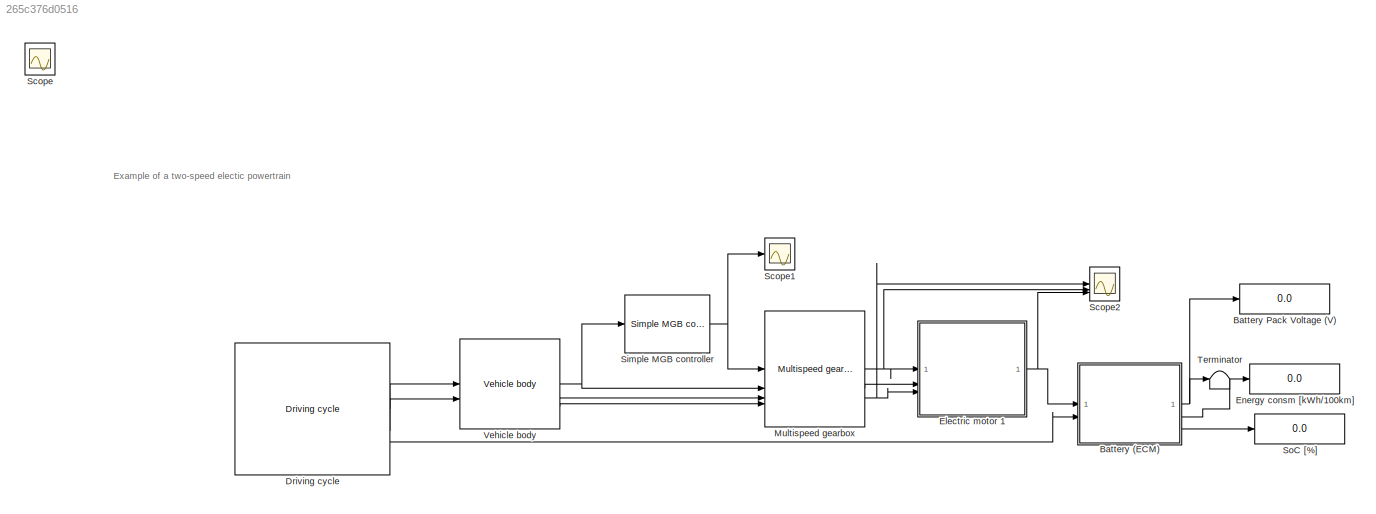
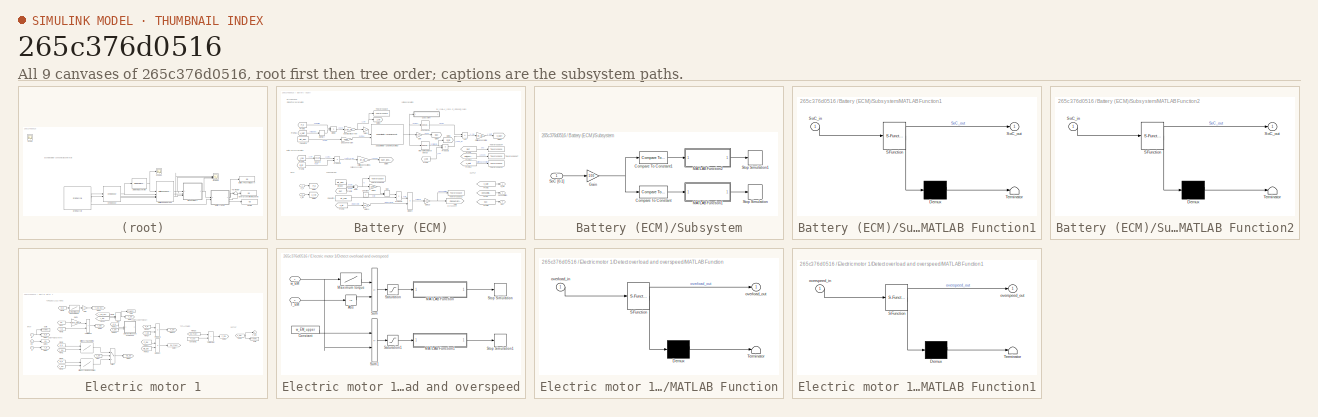
[diagram: thumbnail index - all 9 canvases of the model, root first then tree order]
MODEL slx_265c376d0516
KIND model
CONFIG AbsTol = auto
CONFIG EnableMultiTasking = off
CONFIG FixedStep = auto
CONFIG MaxStep = auto
CONFIG MinStep = auto
CONFIG RelTol = 1e-3
CONFIG SampleTimeConstraint = Unconstrained
CONFIG SolverName = VariableStepAuto
CONFIG StartTime = 0.0
CONFIG StopTime = 1800
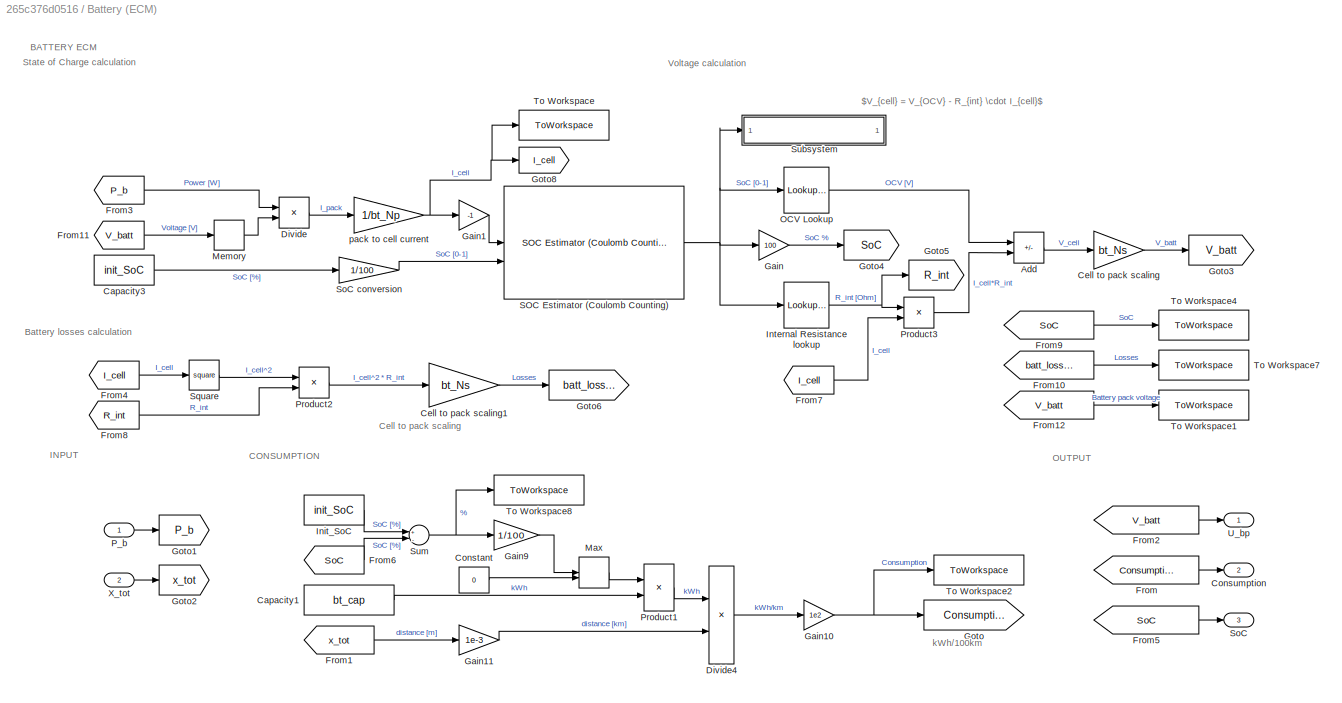
BLOCK [SubSystem] Battery (ECM)
  AncestorBlock = EnergyStorage/Battery (ECM)
  InitFcn = % Check if ECMdata already exists in the workspace existingVars = evalin('base', 'who'); if ismember('ECMdata', existingVars) % If ECMdata exists, load it into the mask parameters ECMdata = evalin('base', 'ECMdata'); % Check if values are set, if not set defaults if isempty(get_param(gcb, 'bt_vol')) set_param(gcb, 'bt_vol', num2str(ECMdata.bt_vol)); end if isempty(get_param(gcb, 'bt_cap')) set_par...<+263ch>
BLOCK [Sum] Battery (ECM)/Add
  IconShape = rectangular
  Inputs = +-
BLOCK [Constant] Battery (ECM)/Capacity1
  Value = bt_cap
BLOCK [Constant] Battery (ECM)/Capacity3
  Value = init_SoC
BLOCK [Gain] Battery (ECM)/Cell to pack scaling
  Gain = bt_Ns
BLOCK [Gain] Battery (ECM)/Cell to pack scaling1
  Gain = bt_Ns
BLOCK [Constant] Battery (ECM)/Constant
  Value = 0
BLOCK [Outport] Battery (ECM)/Consumption
  Port = 2
BLOCK [Product] Battery (ECM)/Divide
  Inputs = */
BLOCK [Product] Battery (ECM)/Divide4
  Inputs = */
BLOCK [From] Battery (ECM)/From
  GotoTag = Consumption
BLOCK [From] Battery (ECM)/From1
  GotoTag = x_tot
BLOCK [From] Battery (ECM)/From10
  GotoTag = batt_losses
BLOCK [From] Battery (ECM)/From11
  GotoTag = V_batt
BLOCK [From] Battery (ECM)/From12
  GotoTag = V_batt
BLOCK [From] Battery (ECM)/From2
  GotoTag = V_batt
BLOCK [From] Battery (ECM)/From3
  GotoTag = P_b
BLOCK [From] Battery (ECM)/From4
  GotoTag = I_cell
BLOCK [From] Battery (ECM)/From5
  GotoTag = SoC
BLOCK [From] Battery (ECM)/From6
  GotoTag = SoC
BLOCK [From] Battery (ECM)/From7
  GotoTag = I_cell
BLOCK [From] Battery (ECM)/From8
  GotoTag = R_int
BLOCK [From] Battery (ECM)/From9
  GotoTag = SoC
BLOCK [Gain] Battery (ECM)/Gain
  Gain = 100
BLOCK [Gain] Battery (ECM)/Gain1
  Gain = -1
BLOCK [Gain] Battery (ECM)/Gain10
  Gain = 1e2
BLOCK [Gain] Battery (ECM)/Gain11
  Gain = 1e-3
BLOCK [Gain] Battery (ECM)/Gain9
  Gain = 1/100
BLOCK [Goto] Battery (ECM)/Goto
  GotoTag = Consumption
BLOCK [Goto] Battery (ECM)/Goto1
  GotoTag = P_b
BLOCK [Goto] Battery (ECM)/Goto2
  GotoTag = x_tot
BLOCK [Goto] Battery (ECM)/Goto3
  GotoTag = V_batt
BLOCK [Goto] Battery (ECM)/Goto4
  GotoTag = SoC
BLOCK [Goto] Battery (ECM)/Goto5
  GotoTag = R_int
BLOCK [Goto] Battery (ECM)/Goto6
  GotoTag = batt_losses
BLOCK [Goto] Battery (ECM)/Goto8
  GotoTag = I_cell
BLOCK [Constant] Battery (ECM)/Init_SoC
  Value = init_SoC
BLOCK [Lookup_n-D] Battery (ECM)/Internal Resistance lookup
  BreakpointsForDimension1 = SoC_breakpoints
  InputPortMap = u0
  InternalRulePriority = Speed
  NumberOfTableDimensions = 1
  RndMeth = Simplest
  Table = Internal_Resistance
BLOCK [MinMax] Battery (ECM)/Max
  Function = max
  Inputs = 2
BLOCK [Memory] Battery (ECM)/Memory
  InheritSampleTime = on
  InitialCondition = bt_vol
  LinearizeAsDelay = on
BLOCK [Lookup_n-D] Battery (ECM)/OCV Lookup
  BreakpointsForDimension1 = SoC_breakpoints
  InputPortMap = u0
  InternalRulePriority = Speed
  NumberOfTableDimensions = 1
  RndMeth = Simplest
  Table = OCV
BLOCK [Inport] Battery (ECM)/P_b
BLOCK [Product] Battery (ECM)/Product1
BLOCK [Product] Battery (ECM)/Product2
BLOCK [Product] Battery (ECM)/Product3
BLOCK [Reference] Battery (ECM)/SOC Estimator (Coulomb Counting)  REF=BatteryEstimators/SOC Estimator
(Coulomb Counting)
  LibrarySourceBlock = batt_sl_lib/Estimators/SOC Estimator\n(Coulomb Counting)
  SourceBlock = BatteryEstimators/SOC Estimator\n(Coulomb Counting)
  SourceType = SOC Estimator (Coulomb Counting)
BLOCK [Outport] Battery (ECM)/SoC
  Port = 3
BLOCK [Gain] Battery (ECM)/SoC conversion
  Gain = 1/100
BLOCK [Math] Battery (ECM)/Square
  Operator = square
BLOCK [SubSystem] Battery (ECM)/Subsystem
  ShowPortLabels = none
BLOCK [Reference] Battery (ECM)/Subsystem/Compare To Constant  REF=simulink/Logic and Bit
Operations/Compare
To Constant
  SourceBlock = simulink/Logic and Bit\nOperations/Compare\nTo Constant
  SourceType = Compare To Constant
BLOCK [Reference] Battery (ECM)/Subsystem/Compare To Constant1  REF=simulink/Logic and Bit
Operations/Compare
To Constant
  SourceBlock = simulink/Logic and Bit\nOperations/Compare\nTo Constant
  SourceType = Compare To Constant
BLOCK [Gain] Battery (ECM)/Subsystem/Gain
  Gain = 100
BLOCK [SubSystem] Battery (ECM)/Subsystem/MATLAB Function1
  ErrorFcn = Stateflow.Translate.translate
  PermitHierarchicalResolution = ExplicitOnly
  SFBlockType = MATLAB Function
  TreatAsAtomicUnit = on
BLOCK [Demux] Battery (ECM)/Subsystem/MATLAB Function1/ Demux 
  Outputs = 1
BLOCK [S-Function] Battery (ECM)/Subsystem/MATLAB Function1/ SFunction 
  EnableBusSupport = on
  FunctionName = sf_sfun
  PortCounts = [1 2]
  SFcnIsStateOwnerBlock = off
  SFunctionDeploymentMode = off
  Tag = Stateflow S-Function 4
BLOCK [Terminator] Battery (ECM)/Subsystem/MATLAB Function1/ Terminator 
BLOCK [Inport] Battery (ECM)/Subsystem/MATLAB Function1/SoC_in
BLOCK [Outport] Battery (ECM)/Subsystem/MATLAB Function1/SoC_out
BLOCK [SubSystem] Battery (ECM)/Subsystem/MATLAB Function2
  ErrorFcn = Stateflow.Translate.translate
  PermitHierarchicalResolution = ExplicitOnly
  SFBlockType = MATLAB Function
  TreatAsAtomicUnit = on
BLOCK [Demux] Battery (ECM)/Subsystem/MATLAB Function2/ Demux 
  Outputs = 1
BLOCK [S-Function] Battery (ECM)/Subsystem/MATLAB Function2/ SFunction 
  EnableBusSupport = on
  FunctionName = sf_sfun
  PortCounts = [1 2]
  SFcnIsStateOwnerBlock = off
  SFunctionDeploymentMode = off
  Tag = Stateflow S-Function 5
BLOCK [Terminator] Battery (ECM)/Subsystem/MATLAB Function2/ Terminator 
BLOCK [Inport] Battery (ECM)/Subsystem/MATLAB Function2/SoC_in
BLOCK [Outport] Battery (ECM)/Subsystem/MATLAB Function2/SoC_out
BLOCK [Inport] Battery (ECM)/Subsystem/SoC [0-1]
BLOCK [Stop] Battery (ECM)/Subsystem/Stop Simulation
BLOCK [Stop] Battery (ECM)/Subsystem/Stop Simulation1
BLOCK [Sum] Battery (ECM)/Sum
  Inputs = +|-
BLOCK [ToWorkspace] Battery (ECM)/To Workspace
  FixptAsFi = on
  MaxDataPoints = inf
  SampleTime = -1
  VariableName = I_cell
BLOCK [ToWorkspace] Battery (ECM)/To Workspace1
  FixptAsFi = on
  MaxDataPoints = inf
  SampleTime = -1
  VariableName = U_bp
BLOCK [ToWorkspace] Battery (ECM)/To Workspace2
  FixptAsFi = on
  MaxDataPoints = inf
  SampleTime = -1
  VariableName = Consumption
BLOCK [ToWorkspace] Battery (ECM)/To Workspace4
  FixptAsFi = on
  MaxDataPoints = inf
  SampleTime = -1
  VariableName = SoC
BLOCK [ToWorkspace] Battery (ECM)/To Workspace7
  FixptAsFi = on
  MaxDataPoints = inf
  SampleTime = -1
  VariableName = Losses
BLOCK [ToWorkspace] Battery (ECM)/To Workspace8
  FixptAsFi = on
  MaxDataPoints = inf
  SampleTime = -1
  VariableName = delta_SoC
BLOCK [Outport] Battery (ECM)/U_bp
BLOCK [Inport] Battery (ECM)/X_tot
  Port = 2
BLOCK [Gain] Battery (ECM)/pack to cell current
  Gain = 1/bt_Np
BLOCK [Display] Battery Pack Voltage (V)
  Decimation = 1
BLOCK [Reference] Driving cycle  REF=DrivingCycle/Driving cycle
  SourceBlock = DrivingCycle/Driving cycle
  SourceProductName = Driving cycle
  SourceType = Driving cycle
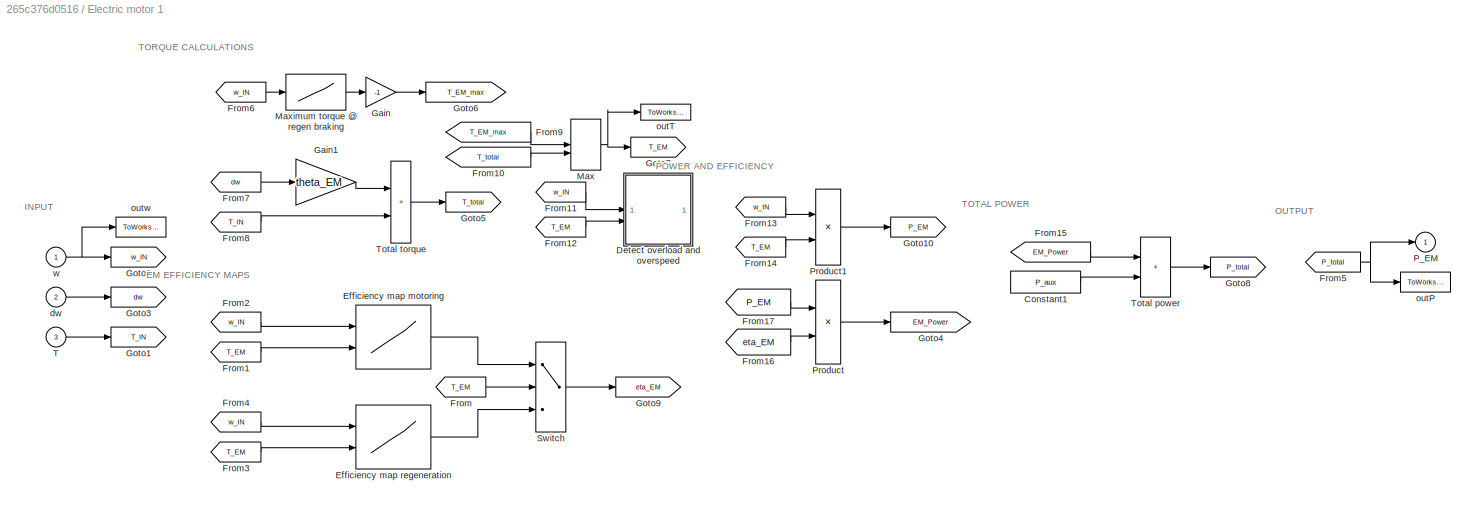
BLOCK [SubSystem] Electric motor 1
BLOCK [Constant] Electric motor 1/Constant1
  Value = P_aux
BLOCK [SubSystem] Electric motor 1/Detect overload and overspeed
BLOCK [Abs] Electric motor 1/Detect overload and overspeed/Abs
BLOCK [Constant] Electric motor 1/Detect overload and overspeed/Constant
  Value = w_EM_upper
BLOCK [SubSystem] Electric motor 1/Detect overload and overspeed/MATLAB Function
  ErrorFcn = Stateflow.Translate.translate
  PermitHierarchicalResolution = ExplicitOnly
  SFBlockType = MATLAB Function
  TreatAsAtomicUnit = on
BLOCK [Demux] Electric motor 1/Detect overload and overspeed/MATLAB Function/ Demux 
  Outputs = 1
BLOCK [S-Function] Electric motor 1/Detect overload and overspeed/MATLAB Function/ SFunction 
  EnableBusSupport = on
  FunctionName = sf_sfun
  PortCounts = [1 2]
  SFcnIsStateOwnerBlock = off
  SFunctionDeploymentMode = off
  Tag = Stateflow S-Function 1
BLOCK [Terminator] Electric motor 1/Detect overload and overspeed/MATLAB Function/ Terminator 
BLOCK [Inport] Electric motor 1/Detect overload and overspeed/MATLAB Function/overload_in
BLOCK [Outport] Electric motor 1/Detect overload and overspeed/MATLAB Function/overload_out
BLOCK [SubSystem] Electric motor 1/Detect overload and overspeed/MATLAB Function1
  ErrorFcn = Stateflow.Translate.translate
  PermitHierarchicalResolution = ExplicitOnly
  SFBlockType = MATLAB Function
  TreatAsAtomicUnit = on
BLOCK [Demux] Electric motor 1/Detect overload and overspeed/MATLAB Function1/ Demux 
  Outputs = 1
BLOCK [S-Function] Electric motor 1/Detect overload and overspeed/MATLAB Function1/ SFunction 
  EnableBusSupport = on
  FunctionName = sf_sfun
  PortCounts = [1 2]
  SFcnIsStateOwnerBlock = off
  SFunctionDeploymentMode = off
  Tag = Stateflow S-Function 2
BLOCK [Terminator] Electric motor 1/Detect overload and overspeed/MATLAB Function1/ Terminator 
BLOCK [Inport] Electric motor 1/Detect overload and overspeed/MATLAB Function1/overspeed_in
BLOCK [Outport] Electric motor 1/Detect overload and overspeed/MATLAB Function1/overspeed_out
BLOCK [Lookup] Electric motor 1/Detect overload and overspeed/Maximum torque
  InputValues = w_EM_row
  Table = T_EM_max
BLOCK [Saturate] Electric motor 1/Detect overload and overspeed/Saturation
  LowerLimit = -inf
  UpperLimit = 0
BLOCK [Saturate] Electric motor 1/Detect overload and overspeed/Saturation1
  LowerLimit = -inf
  UpperLimit = 0
BLOCK [Stop] Electric motor 1/Detect overload and overspeed/Stop Simulation
BLOCK [Stop] Electric motor 1/Detect overload and overspeed/Stop Simulation1
BLOCK [Sum] Electric motor 1/Detect overload and overspeed/Sum
  IconShape = rectangular
  InputSameDT = on
  Inputs = +-
  OutDataTypeStr = Inherit: Same as first input
  SaturateOnIntegerOverflow = on
BLOCK [Sum] Electric motor 1/Detect overload and overspeed/Sum1
  IconShape = rectangular
  InputSameDT = on
  Inputs = +-
  OutDataTypeStr = Inherit: Same as first input
  SaturateOnIntegerOverflow = on
BLOCK [Inport] Electric motor 1/Detect overload and overspeed/T_EM
  Port = 2
BLOCK [Inport] Electric motor 1/Detect overload and overspeed/w_EM
BLOCK [Lookup2D] Electric motor 1/Efficiency map motoring
  ColumnIndex = T_EM_col
  InputSameDT = off
  RowIndex = w_EM_row
  SaturateOnIntegerOverflow = off
  Table = eta_EM_mapM
BLOCK [Lookup2D] Electric motor 1/Efficiency map regeneration
  ColumnIndex = T_EM_col
  InputSameDT = off
  RowIndex = w_EM_row
  SaturateOnIntegerOverflow = off
  Table = eta_EM_mapG
BLOCK [From] Electric motor 1/From
  GotoTag = T_EM
BLOCK [From] Electric motor 1/From1
  GotoTag = T_EM
BLOCK [From] Electric motor 1/From10
  GotoTag = T_total
BLOCK [From] Electric motor 1/From11
  GotoTag = w_IN
BLOCK [From] Electric motor 1/From12
  GotoTag = T_EM
BLOCK [From] Electric motor 1/From13
  GotoTag = w_IN
BLOCK [From] Electric motor 1/From14
  GotoTag = T_EM
BLOCK [From] Electric motor 1/From15
  GotoTag = EM_Power
BLOCK [From] Electric motor 1/From16
  GotoTag = eta_EM
BLOCK [From] Electric motor 1/From17
  GotoTag = P_EM
BLOCK [From] Electric motor 1/From2
  GotoTag = w_IN
BLOCK [From] Electric motor 1/From3
  GotoTag = T_EM
BLOCK [From] Electric motor 1/From4
  GotoTag = w_IN
BLOCK [From] Electric motor 1/From5
  GotoTag = P_total
BLOCK [From] Electric motor 1/From6
  GotoTag = w_IN
BLOCK [From] Electric motor 1/From7
  GotoTag = dw
BLOCK [From] Electric motor 1/From8
  GotoTag = T_IN
BLOCK [From] Electric motor 1/From9
  GotoTag = T_EM_max
BLOCK [Gain] Electric motor 1/Gain
  Gain = -1
BLOCK [Gain] Electric motor 1/Gain1
  Gain = theta_EM
  OutDataTypeStr = Inherit: Same as input
  ParamDataTypeStr = Inherit: Same as input
  SaturateOnIntegerOverflow = on
BLOCK [Goto] Electric motor 1/Goto1
  GotoTag = T_IN
BLOCK [Goto] Electric motor 1/Goto10
  GotoTag = P_EM
BLOCK [Goto] Electric motor 1/Goto2
  GotoTag = w_IN
BLOCK [Goto] Electric motor 1/Goto3
  GotoTag = dw
BLOCK [Goto] Electric motor 1/Goto4
  GotoTag = EM_Power
BLOCK [Goto] Electric motor 1/Goto5
  GotoTag = T_total
BLOCK [Goto] Electric motor 1/Goto6
  GotoTag = T_EM_max
BLOCK [Goto] Electric motor 1/Goto7
  GotoTag = T_EM
BLOCK [Goto] Electric motor 1/Goto8
  GotoTag = P_total
BLOCK [Goto] Electric motor 1/Goto9
  GotoTag = eta_EM
BLOCK [MinMax] Electric motor 1/Max
  Function = max
  Inputs = 2
BLOCK [Lookup] Electric motor 1/Maximum torque @ regen braking
  InputValues = w_EM_row
  Table = T_EM_max
BLOCK [Outport] Electric motor 1/P_EM
  InitialOutput = 0
BLOCK [Product] Electric motor 1/Product
  InputSameDT = on
  OutDataTypeStr = Inherit: Same as first input
  RndMeth = Zero
  SaturateOnIntegerOverflow = on
BLOCK [Product] Electric motor 1/Product1
BLOCK [Switch] Electric motor 1/Switch
  Criteria = u2 > Threshold
  InputSameDT = off
  SaturateOnIntegerOverflow = off
BLOCK [Inport] Electric motor 1/T
  Port = 3
BLOCK [Sum] Electric motor 1/Total power
  IconShape = rectangular
  InputSameDT = on
  OutDataTypeStr = Inherit: Same as first input
  SaturateOnIntegerOverflow = on
BLOCK [Sum] Electric motor 1/Total torque
  IconShape = rectangular
  InputSameDT = on
  OutDataTypeStr = Inherit: Same as first input
  SaturateOnIntegerOverflow = on
BLOCK [Inport] Electric motor 1/dw
  Port = 2
BLOCK [ToWorkspace] Electric motor 1/outP
  MaxDataPoints = inf
  SampleTime = -1
  VariableName = P_EM1
BLOCK [ToWorkspace] Electric motor 1/outT
  MaxDataPoints = inf
  NameLocation = top
  SampleTime = -1
  VariableName = T_EM1
BLOCK [ToWorkspace] Electric motor 1/outw
  MaxDataPoints = inf
  NameLocation = top
  SampleTime = -1
  VariableName = w_EM1
BLOCK [Inport] Electric motor 1/w
BLOCK [Display] Energy consm [kWh//100km]
  Decimation = 1
BLOCK [Reference] Multispeed gearbox  REF=GearSystems/Multispeed gearbox
  SourceBlock = GearSystems/Multispeed gearbox
  SourceProductName = Gear systems
  SourceType = Manual Gear Box
  Tag = transmission
BLOCK [Scope] Scope
  Floating = off
  IOType = viewer
  NumInputPorts = 1
  ScopeSpecificationString = Simulink.scopes.TimeScopeBlockCfg('CurrentConfiguration', extmgr.ConfigurationSet(extmgr.Configuration('Core','General UI',true),extmgr.Configuration('Core','Source UI',true),extmgr.Configuration('Sources','WiredSimulink',true),extmgr.Configuration('Visuals','Time Domain',true,'SerializedDisplays',{struct('MinYLimReal','0.36819','MaxYLimReal','0.51465','YLabelReal','','MinYLimMag','0.36819','MaxYL...<+1395ch>
BLOCK [Scope] Scope1
  Floating = off
  NumInputPorts = 1
  ScopeSpecificationString = Simulink.scopes.TimeScopeBlockCfg('CurrentConfiguration', extmgr.ConfigurationSet(extmgr.Configuration('Core','General UI',true),extmgr.Configuration('Core','Source UI',true),extmgr.Configuration('Sources','WiredSimulink',true,'DataLoggingVariableName','ScopeData1'),extmgr.Configuration('Visuals','Time Domain',true,'SerializedDisplays',{struct('MinYLimReal','0.9','MaxYLimReal','1.1','YLabelReal','...<+1414ch>
BLOCK [Scope] Scope2
  Floating = off
  NumInputPorts = 3
  ScopeSpecificationString = Simulink.scopes.TimeScopeBlockCfg('CurrentConfiguration', extmgr.ConfigurationSet(extmgr.Configuration('Core','General UI',true),extmgr.Configuration('Core','Source UI',true),extmgr.Configuration('Sources','WiredSimulink',true,'DataLoggingVariableName','ScopeData2'),extmgr.Configuration('Visuals','Time Domain',true,'SerializedDisplays',{struct('MinYLimReal','-90.50172','MaxYLimReal','328.75874','Y...<+3089ch>
BLOCK [Reference] Simple MGB controller  REF=GearSystemsControl/Simple MGB controller
  NameLocation = top
  SourceBlock = GearSystemsControl/Simple MGB controller
  SourceProductName = Gear systems control
  SourceType = Simple MGB controller
BLOCK [Display] SoC [%]
  Decimation = 1
BLOCK [Terminator] Terminator
BLOCK [Reference] Vehicle body  REF=VehicleBody/Vehicle body
  SourceBlock = VehicleBody/Vehicle body
  SourceProductName = Vehicle body
  SourceType = Vehicle body
ANNOTATION (root): Example of a two-speed electic powertrain
ANNOTATION Battery (ECM): $V_{cell} = V_{OCV} - R_{int} \cdot I_{cell}$
ANNOTATION Battery (ECM): BATTERY ECM
ANNOTATION Battery (ECM): Battery losses calculation
ANNOTATION Battery (ECM): CONSUMPTION
ANNOTATION Battery (ECM): Cell to pack scaling
ANNOTATION Battery (ECM): INPUT
ANNOTATION Battery (ECM): OUTPUT
ANNOTATION Battery (ECM): State of Charge calculation
ANNOTATION Battery (ECM): Voltage calculation
ANNOTATION Battery (ECM): kWh/100km
ANNOTATION Electric motor 1: EM EFFICIENCY MAPS
ANNOTATION Electric motor 1: INPUT
ANNOTATION Electric motor 1: OUTPUT
ANNOTATION Electric motor 1: POWER AND EFFICIENCY
ANNOTATION Electric motor 1: TORQUE CALCULATIONS
ANNOTATION Electric motor 1: TOTAL POWER
NET Battery (ECM):1 -> Battery Pack Voltage (V):1, Terminator:1
LINE Battery (ECM):2 -> Energy consm [kWh//100km]:1
LINE Battery (ECM):3 -> SoC [%]:1
LINE Driving cycle:1 -> Vehicle body:1
LINE Driving cycle:2 -> Vehicle body:2
LINE Driving cycle:3 -> Battery (ECM):2
LINE Electric motor 1/Constant1:1 -> Electric motor 1/Total power:2
LINE Electric motor 1/Detect overload and overspeed/Abs:1 -> Electric motor 1/Detect overload and overspeed/Sum:2
LINE Electric motor 1/Detect overload and overspeed/Constant:1 -> Electric motor 1/Detect overload and overspeed/Sum1:1
LINE Electric motor 1/Detect overload and overspeed/MATLAB Function1:1 -> Electric motor 1/Detect overload and overspeed/Stop Simulation1:1
LINE Electric motor 1/Detect overload and overspeed/MATLAB Function:1 -> Electric motor 1/Detect overload and overspeed/Stop Simulation:1
LINE Electric motor 1/Detect overload and overspeed/Maximum torque:1 -> Electric motor 1/Detect overload and overspeed/Sum:1
LINE Electric motor 1/Detect overload and overspeed/Saturation1:1 -> Electric motor 1/Detect overload and overspeed/MATLAB Function1:1
LINE Electric motor 1/Detect overload and overspeed/Saturation:1 -> Electric motor 1/Detect overload and overspeed/MATLAB Function:1
LINE Electric motor 1/Detect overload and overspeed/Sum1:1 -> Electric motor 1/Detect overload and overspeed/Saturation1:1
LINE Electric motor 1/Detect overload and overspeed/Sum:1 -> Electric motor 1/Detect overload and overspeed/Saturation:1
LINE Electric motor 1/Detect overload and overspeed/T_EM:1 -> Electric motor 1/Detect overload and overspeed/Abs:1
NET Electric motor 1/Detect overload and overspeed/w_EM:1 -> Electric motor 1/Detect overload and overspeed/Maximum torque:1, Electric motor 1/Detect overload and overspeed/Sum1:2
LINE Electric motor 1/Efficiency map motoring:1 -> Electric motor 1/Switch:1
LINE Electric motor 1/Efficiency map regeneration:1 -> Electric motor 1/Switch:3
LINE Electric motor 1/From10:1 -> Electric motor 1/Max:2
LINE Electric motor 1/From11:1 -> Electric motor 1/Detect overload and overspeed:1
LINE Electric motor 1/From12:1 -> Electric motor 1/Detect overload and overspeed:2
LINE Electric motor 1/From13:1 -> Electric motor 1/Product1:1
LINE Electric motor 1/From14:1 -> Electric motor 1/Product1:2
LINE Electric motor 1/From15:1 -> Electric motor 1/Total power:1
LINE Electric motor 1/From16:1 -> Electric motor 1/Product:2
LINE Electric motor 1/From17:1 -> Electric motor 1/Product:1
LINE Electric motor 1/From1:1 -> Electric motor 1/Efficiency map motoring:2
LINE Electric motor 1/From2:1 -> Electric motor 1/Efficiency map motoring:1
LINE Electric motor 1/From3:1 -> Electric motor 1/Efficiency map regeneration:2
LINE Electric motor 1/From4:1 -> Electric motor 1/Efficiency map regeneration:1
NET Electric motor 1/From5:1 -> Electric motor 1/P_EM:1, Electric motor 1/outP:1
LINE Electric motor 1/From6:1 -> Electric motor 1/Maximum torque @ regen braking:1
LINE Electric motor 1/From7:1 -> Electric motor 1/Gain1:1
LINE Electric motor 1/From8:1 -> Electric motor 1/Total torque:2
LINE Electric motor 1/From9:1 -> Electric motor 1/Max:1
LINE Electric motor 1/From:1 -> Electric motor 1/Switch:2
LINE Electric motor 1/Gain1:1 -> Electric motor 1/Total torque:1
LINE Electric motor 1/Gain:1 -> Electric motor 1/Goto6:1
NET Electric motor 1/Max:1 -> Electric motor 1/Goto7:1, Electric motor 1/outT:1
LINE Electric motor 1/Maximum torque @ regen braking:1 -> Electric motor 1/Gain:1
LINE Electric motor 1/Product1:1 -> Electric motor 1/Goto10:1
LINE Electric motor 1/Product:1 -> Electric motor 1/Goto4:1
LINE Electric motor 1/Switch:1 -> Electric motor 1/Goto9:1
LINE Electric motor 1/T:1 -> Electric motor 1/Goto1:1
LINE Electric motor 1/Total power:1 -> Electric motor 1/Goto8:1
LINE Electric motor 1/Total torque:1 -> Electric motor 1/Goto5:1
LINE Electric motor 1/dw:1 -> Electric motor 1/Goto3:1
NET Electric motor 1/w:1 -> Electric motor 1/Goto2:1, Electric motor 1/outw:1
NET Electric motor 1:1 -> Battery (ECM):1, Scope2:3
NET Multispeed gearbox:1 -> Electric motor 1:1, Scope2:2
LINE Multispeed gearbox:2 -> Electric motor 1:2
NET Multispeed gearbox:3 -> Electric motor 1:3, Scope2:1
NET Simple MGB controller:1 -> Multispeed gearbox:1, Scope1:1
NET Vehicle body:1 -> Multispeed gearbox:2, Simple MGB controller:1
LINE Vehicle body:2 -> Multispeed gearbox:3
LINE Vehicle body:3 -> Multispeed gearbox:4
note: NET lines group one-source signal fan-out (src -> all destinations, sorted); 1:1 wires keep LINE
CHART Electric motor 1/Detect overload
and overspeed/MATLAB Function1 states=1 transitions=1
  STATE_LABEL 'eML_blk_kernel()'
  STATE_LABEL "SCRIPT:\nfunction overspeed_out = overspeed_fnc(overspeed_in)\n\nif overspeed_in~=0\n     disp('Simulation stopped due to Motor Overspeed.')\nend\n\noverspeed_out = overspeed_in;\n"
CHART Battery (ECM)/Subsystem/MATLAB Function1 states=1 transitions=1
  STATE_LABEL 'eML_blk_kernel()'
  STATE_LABEL "SCRIPT:\nfunction SoC_out = empty(SoC_in)\n\nif SoC_in~=0\n    disp('Simulation stopped due to Battery Empty.')\nend\n\nSoC_out = SoC_in;\n"
CHART Battery (ECM)/Subsystem/MATLAB Function2 states=1 transitions=1
  STATE_LABEL 'eML_blk_kernel()'
  STATE_LABEL "SCRIPT:\nfunction SoC_out = full(SoC_in)\n\nif SoC_in~=0\n    disp('Simulation stopped due to Battery Full.')\nend\n\nSoC_out = SoC_in;\n"
CHART Electric motor 1/Detect overload
and overspeed/MATLAB Function states=1 transitions=1
  STATE_LABEL 'eML_blk_kernel()'
  STATE_LABEL "SCRIPT:\nfunction overload_out = overload_fnc(overload_in)\n\nif overload_in~=0\n    disp('Simulation stopped due to Motor Overload.')\nend\n\noverload_out = overload_in;\n"
CHART  states=0 transitions=0
CHART  states=0 transitions=0
CHART  states=0 transitions=0
CHART  states=0 transitions=0
